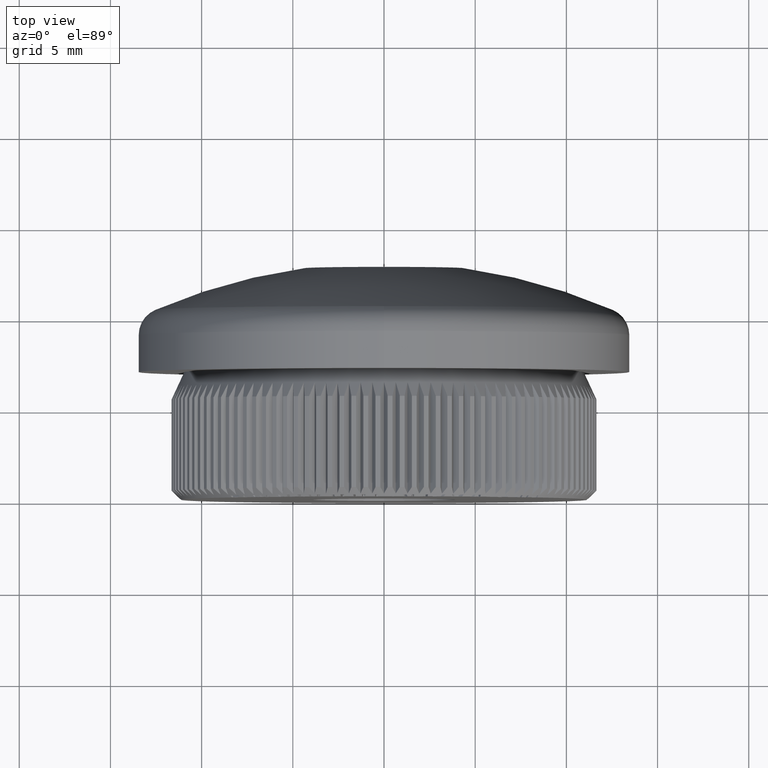
[diagram: clean part render]
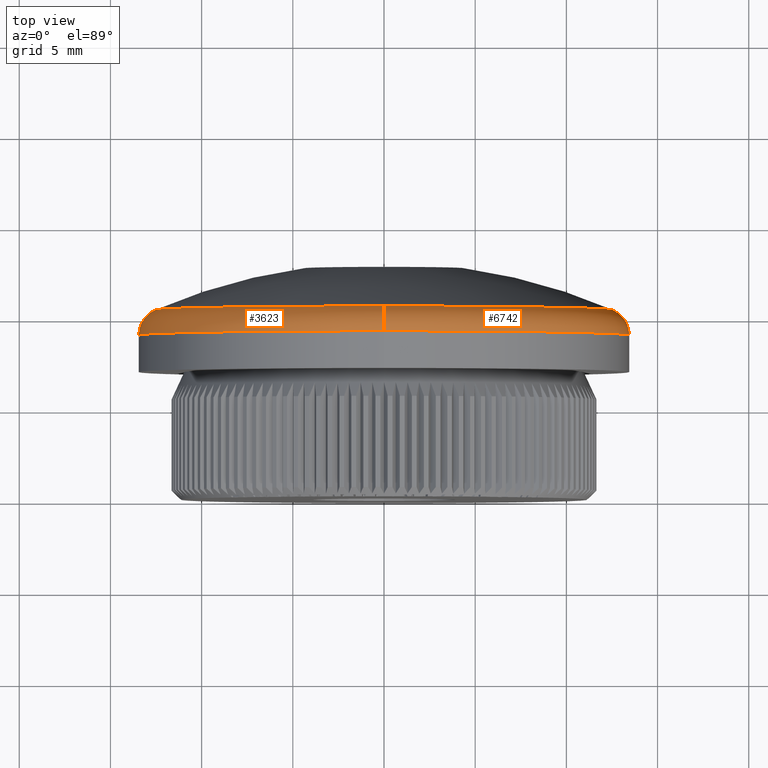
[diagram: same view with one multi-face feature highlighted, each face labeled with its STEP entity id]
A machine part, top view. The highlighted faces form ONE feature: a constant-radius fillet chain: 2 tangent blend faces with common blend radius 1.5 mm. The faces share edges in the B-rep.
Their STEP definitions:
[1] entity #3623 (Torus):
#1255 = CIRCLE ( 'NONE', #10848, 12.54451914705435000 ) ;
#1701 = DIRECTION ( 'NONE',  ( 0.0000000000000000000, 0.0000000000000000000, -1.000000000000000000 ) ) ;
#2301 = ORIENTED_EDGE ( 'NONE', *, *, #8229, .F. ) ;
#2342 = CARTESIAN_POINT ( 'NONE',  ( 0.0000000000000000000, 10.40786811655475900, -12.54451914705435000 ) ) ;
#2504 = VERTEX_POINT ( 'NONE', #2342 ) ;
#2507 = VERTEX_POINT ( 'NONE', #16747 ) ;
#2655 = ORIENTED_EDGE ( 'NONE', *, *, #17835, .T. ) ;
#3250 = CARTESIAN_POINT ( 'NONE',  ( 0.0000000000000000000, 9.030716351575401600, -11.95000000000000100 ) ) ;
#3336 = DIRECTION ( 'NONE',  ( 0.0000000000000000000, 0.0000000000000000000, -1.000000000000000000 ) ) ;
#3623 = ADVANCED_FACE ( 'NONE', ( #18414 ), #6876, .T. ) ;
#4852 = DIRECTION ( 'NONE',  ( -1.000000000000000000, 0.0000000000000000000, 0.0000000000000000000 ) ) ;
#4944 = CARTESIAN_POINT ( 'NONE',  ( 1.647149944853190000E-015, 9.030716351575401600, 13.44999999999999900 ) ) ;
#5106 = CARTESIAN_POINT ( 'NONE',  ( 0.0000000000000000000, 10.40786811655475900, 0.0000000000000000000 ) ) ;
#6876 = TOROIDAL_SURFACE ( 'NONE', #7462, 11.95000000000000100, 1.500000000000000000 ) ;
#7400 = AXIS2_PLACEMENT_3D ( 'NONE', #8523, #11883, #10004 ) ;
#7462 = AXIS2_PLACEMENT_3D ( 'NONE', #18932, #17466, #1701 ) ;
#7602 = VERTEX_POINT ( 'NONE', #7660 ) ;
#7660 = CARTESIAN_POINT ( 'NONE',  ( 0.0000000000000000000, 9.030716351575401600, -13.44999999999999900 ) ) ;
#7777 = DIRECTION ( 'NONE',  ( 0.0000000000000000000, 1.000000000000000000, 0.0000000000000000000 ) ) ;
#7974 = CARTESIAN_POINT ( 'NONE',  ( 0.0000000000000000000, 10.40786811655475900, 0.0000000000000000000 ) ) ;
#8229 = EDGE_CURVE ( 'NONE', #2504, #17987, #19020, .T. ) ;
#8336 = EDGE_CURVE ( 'NONE', #17987, #2507, #1255, .T. ) ;
#8467 = DIRECTION ( 'NONE',  ( 0.0000000000000000000, 0.0000000000000000000, -1.000000000000000000 ) ) ;
#8523 = CARTESIAN_POINT ( 'NONE',  ( 1.463452924981087300E-015, 9.030716351575401600, 11.95000000000000100 ) ) ;
#8578 = CIRCLE ( 'NONE', #18360, 13.44999999999999900 ) ;
#9911 = ORIENTED_EDGE ( 'NONE', *, *, #13192, .F. ) ;
#9985 = AXIS2_PLACEMENT_3D ( 'NONE', #3250, #4852, #17702 ) ;
#10004 = DIRECTION ( 'NONE',  ( -1.224646799147353500E-016, 0.0000000000000000000, -1.000000000000000000 ) ) ;
#10149 = ORIENTED_EDGE ( 'NONE', *, *, #8336, .F. ) ;
#10848 = AXIS2_PLACEMENT_3D ( 'NONE', #5106, #16320, #8467 ) ;
#11685 = CIRCLE ( 'NONE', #7400, 1.499999999999999600 ) ;
#11883 = DIRECTION ( 'NONE',  ( 1.000000000000000000, 0.0000000000000000000, -1.224646799147353200E-016 ) ) ;
#12792 = EDGE_LOOP ( 'NONE', ( #9911, #10149, #2301, #2655, #18445 ) ) ;
#13192 = EDGE_CURVE ( 'NONE', #2507, #17402, #11685, .T. ) ;
#15334 = CIRCLE ( 'NONE', #9985, 1.499999999999999600 ) ;
#16096 = CARTESIAN_POINT ( 'NONE',  ( 0.0000000000000000000, 9.030716351575401600, 0.0000000000000000000 ) ) ;
#16153 = DIRECTION ( 'NONE',  ( -0.0000000000000000000, -1.000000000000000000, -0.0000000000000000000 ) ) ;
#16320 = DIRECTION ( 'NONE',  ( 0.0000000000000000000, 1.000000000000000000, 0.0000000000000000000 ) ) ;
#16747 = CARTESIAN_POINT ( 'NONE',  ( 1.591705233440734600E-015, 10.40786811655475900, 12.54451914705435000 ) ) ;
#17284 = AXIS2_PLACEMENT_3D ( 'NONE', #7974, #7777, #17529 ) ;
#17323 = EDGE_CURVE ( 'NONE', #17402, #7602, #8578, .T. ) ;
#17402 = VERTEX_POINT ( 'NONE', #4944 ) ;
#17466 = DIRECTION ( 'NONE',  ( -0.0000000000000000000, -1.000000000000000000, -0.0000000000000000000 ) ) ;
#17529 = DIRECTION ( 'NONE',  ( 0.0000000000000000000, 0.0000000000000000000, -1.000000000000000000 ) ) ;
#17702 = DIRECTION ( 'NONE',  ( 0.0000000000000000000, 0.0000000000000000000, 1.000000000000000000 ) ) ;
#17835 = EDGE_CURVE ( 'NONE', #2504, #7602, #15334, .T. ) ;
#17987 = VERTEX_POINT ( 'NONE', #18185 ) ;
#18185 = CARTESIAN_POINT ( 'NONE',  ( -12.54451914705435600, 10.40786811655475900, 1.536260522028280300E-015 ) ) ;
#18360 = AXIS2_PLACEMENT_3D ( 'NONE', #16096, #16153, #3336 ) ;
#18414 = FACE_OUTER_BOUND ( 'NONE', #12792, .T. ) ;
#18445 = ORIENTED_EDGE ( 'NONE', *, *, #17323, .F. ) ;
#18932 = CARTESIAN_POINT ( 'NONE',  ( 0.0000000000000000000, 9.030716351575401600, 0.0000000000000000000 ) ) ;
#19020 = CIRCLE ( 'NONE', #17284, 12.54451914705435000 ) ;
[2] entity #6742 (Torus):
#1689 = CARTESIAN_POINT ( 'NONE',  ( 0.0000000000000000000, 10.40786811655475900, 0.0000000000000000000 ) ) ;
#1931 = EDGE_CURVE ( 'NONE', #7602, #17402, #13939, .T. ) ;
#2316 = EDGE_CURVE ( 'NONE', #16321, #2504, #17443, .T. ) ;
#2342 = CARTESIAN_POINT ( 'NONE',  ( 0.0000000000000000000, 10.40786811655475900, -12.54451914705435000 ) ) ;
#2504 = VERTEX_POINT ( 'NONE', #2342 ) ;
#2507 = VERTEX_POINT ( 'NONE', #16747 ) ;
#2867 = AXIS2_PLACEMENT_3D ( 'NONE', #14762, #3619, #11611 ) ;
#3250 = CARTESIAN_POINT ( 'NONE',  ( 0.0000000000000000000, 9.030716351575401600, -11.95000000000000100 ) ) ;
#3528 = DIRECTION ( 'NONE',  ( -0.0000000000000000000, -1.000000000000000000, -0.0000000000000000000 ) ) ;
#3619 = DIRECTION ( 'NONE',  ( 0.0000000000000000000, 1.000000000000000000, 0.0000000000000000000 ) ) ;
#3965 = AXIS2_PLACEMENT_3D ( 'NONE', #1689, #6308, #19128 ) ;
#3987 = CARTESIAN_POINT ( 'NONE',  ( 12.54451914705435600, 10.40786811655475900, 0.0000000000000000000 ) ) ;
#4852 = DIRECTION ( 'NONE',  ( -1.000000000000000000, 0.0000000000000000000, 0.0000000000000000000 ) ) ;
#4944 = CARTESIAN_POINT ( 'NONE',  ( 1.647149944853190000E-015, 9.030716351575401600, 13.44999999999999900 ) ) ;
#6175 = EDGE_LOOP ( 'NONE', ( #8157, #17158, #19276, #8226, #12300 ) ) ;
#6308 = DIRECTION ( 'NONE',  ( 0.0000000000000000000, 1.000000000000000000, 0.0000000000000000000 ) ) ;
#6742 = ADVANCED_FACE ( 'NONE', ( #9301 ), #16579, .T. ) ;
#7400 = AXIS2_PLACEMENT_3D ( 'NONE', #8523, #11883, #10004 ) ;
#7602 = VERTEX_POINT ( 'NONE', #7660 ) ;
#7660 = CARTESIAN_POINT ( 'NONE',  ( 0.0000000000000000000, 9.030716351575401600, -13.44999999999999900 ) ) ;
#8157 = ORIENTED_EDGE ( 'NONE', *, *, #15271, .F. ) ;
#8226 = ORIENTED_EDGE ( 'NONE', *, *, #17835, .F. ) ;
#8331 = DIRECTION ( 'NONE',  ( -0.0000000000000000000, -1.000000000000000000, -0.0000000000000000000 ) ) ;
#8523 = CARTESIAN_POINT ( 'NONE',  ( 1.463452924981087300E-015, 9.030716351575401600, 11.95000000000000100 ) ) ;
#9301 = FACE_OUTER_BOUND ( 'NONE', #6175, .T. ) ;
#9805 = CARTESIAN_POINT ( 'NONE',  ( 0.0000000000000000000, 9.030716351575401600, 0.0000000000000000000 ) ) ;
#9985 = AXIS2_PLACEMENT_3D ( 'NONE', #3250, #4852, #17702 ) ;
#10004 = DIRECTION ( 'NONE',  ( -1.224646799147353500E-016, 0.0000000000000000000, -1.000000000000000000 ) ) ;
#11593 = DIRECTION ( 'NONE',  ( 0.0000000000000000000, 0.0000000000000000000, -1.000000000000000000 ) ) ;
#11611 = DIRECTION ( 'NONE',  ( 0.0000000000000000000, 0.0000000000000000000, -1.000000000000000000 ) ) ;
#11685 = CIRCLE ( 'NONE', #7400, 1.499999999999999600 ) ;
#11883 = DIRECTION ( 'NONE',  ( 1.000000000000000000, 0.0000000000000000000, -1.224646799147353200E-016 ) ) ;
#12300 = ORIENTED_EDGE ( 'NONE', *, *, #2316, .F. ) ;
#13192 = EDGE_CURVE ( 'NONE', #2507, #17402, #11685, .T. ) ;
#13381 = AXIS2_PLACEMENT_3D ( 'NONE', #16278, #3528, #11593 ) ;
#13709 = AXIS2_PLACEMENT_3D ( 'NONE', #9805, #8331, #18083 ) ;
#13939 = CIRCLE ( 'NONE', #13381, 13.44999999999999900 ) ;
#14762 = CARTESIAN_POINT ( 'NONE',  ( 0.0000000000000000000, 10.40786811655475900, 0.0000000000000000000 ) ) ;
#15271 = EDGE_CURVE ( 'NONE', #2507, #16321, #18888, .T. ) ;
#15334 = CIRCLE ( 'NONE', #9985, 1.499999999999999600 ) ;
#16278 = CARTESIAN_POINT ( 'NONE',  ( 0.0000000000000000000, 9.030716351575401600, 0.0000000000000000000 ) ) ;
#16321 = VERTEX_POINT ( 'NONE', #3987 ) ;
#16579 = TOROIDAL_SURFACE ( 'NONE', #13709, 11.95000000000000100, 1.500000000000000000 ) ;
#16747 = CARTESIAN_POINT ( 'NONE',  ( 1.591705233440734600E-015, 10.40786811655475900, 12.54451914705435000 ) ) ;
#17158 = ORIENTED_EDGE ( 'NONE', *, *, #13192, .T. ) ;
#17402 = VERTEX_POINT ( 'NONE', #4944 ) ;
#17443 = CIRCLE ( 'NONE', #3965, 12.54451914705435000 ) ;
#17702 = DIRECTION ( 'NONE',  ( 0.0000000000000000000, 0.0000000000000000000, 1.000000000000000000 ) ) ;
#17835 = EDGE_CURVE ( 'NONE', #2504, #7602, #15334, .T. ) ;
#18083 = DIRECTION ( 'NONE',  ( 0.0000000000000000000, 0.0000000000000000000, -1.000000000000000000 ) ) ;
#18888 = CIRCLE ( 'NONE', #2867, 12.54451914705435000 ) ;
#19128 = DIRECTION ( 'NONE',  ( 0.0000000000000000000, 0.0000000000000000000, -1.000000000000000000 ) ) ;
#19276 = ORIENTED_EDGE ( 'NONE', *, *, #1931, .F. ) ;